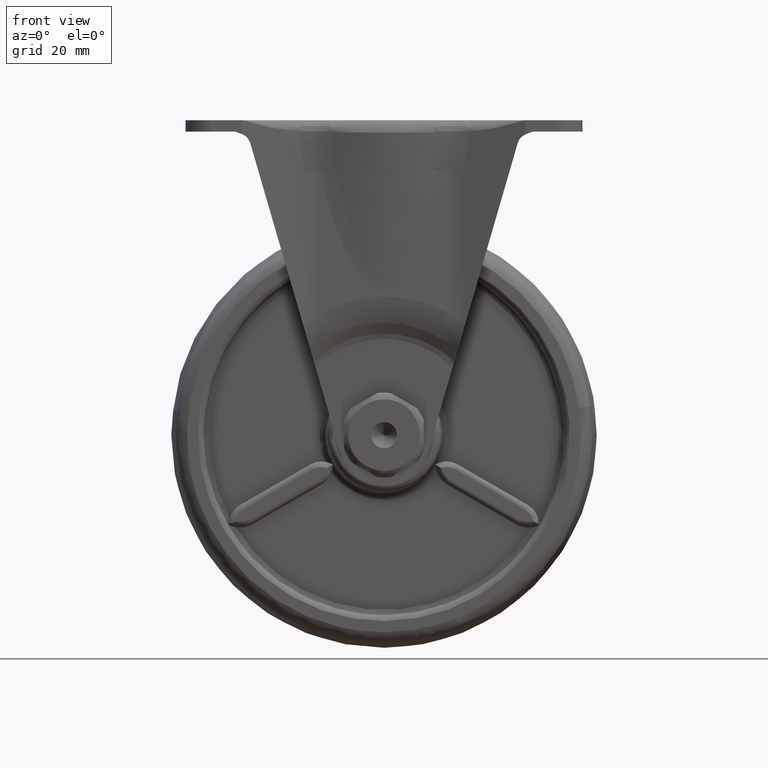
[diagram: clean part render]
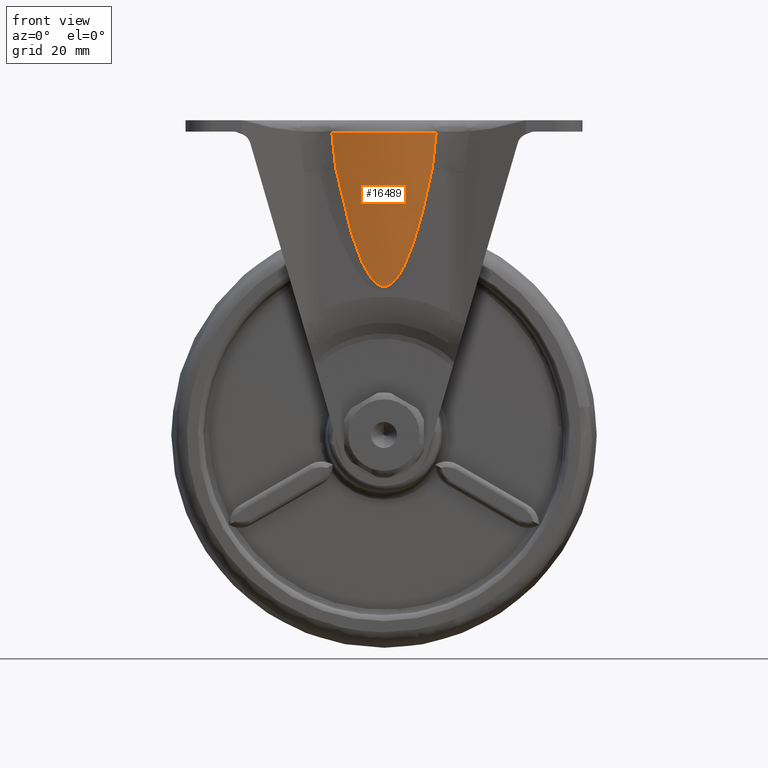
[diagram: same view with one face highlighted and labeled with its STEP entity id]
A machine part, front view. The second image highlights one B-rep face of the part: STEP entity #16489.
In plain terms, the highlighted face is a freeform B-spline surface patch.
Its self-contained STEP definition (entity closure, byte-faithful):
#12428=CARTESIAN_POINT('',(8.530795806443949,-20.856097354703149,-8.355410323775129));
#12429=VERTEX_POINT('',#12428);
#12496=CARTESIAN_POINT('',(9.194323296401290,-21.165415708433649,-2.161020257684145));
#12497=VERTEX_POINT('',#12496);
#12511=CARTESIAN_POINT('',(8.530795806443949,-20.856097354703149,-8.355410323775129));
#12512=CARTESIAN_POINT('',(8.863915262767321,-21.009783463607292,-5.317793989851105));
#12513=CARTESIAN_POINT('',(9.194323296401290,-21.165415708433649,-2.161020257684145));
#12521=(BOUNDED_CURVE()B_SPLINE_CURVE(2,(#12511,#12512,#12513),.UNSPECIFIED.,.F.,.U.)CURVE()GEOMETRIC_REPRESENTATION_ITEM()QUASI_UNIFORM_CURVE()RATIONAL_B_SPLINE_CURVE((1.0,0.999923523458264,1.0))REPRESENTATION_ITEM(''));
#12522=EDGE_CURVE('',#12429,#12497,#12521,.T.);
#12962=CARTESIAN_POINT('',(-8.530786592763409,-20.856096325523851,-8.355456641424510));
#12963=VERTEX_POINT('',#12962);
#13013=CARTESIAN_POINT('',(-9.194319491833340,-21.165417021950049,-2.161020265576605));
#13014=VERTEX_POINT('',#13013);
#13044=CARTESIAN_POINT('',(-9.194319491833388,-21.165417021950049,-2.161020265576630));
#13045=CARTESIAN_POINT('',(-8.863908774537475,-21.009783589364911,-5.317818126593266));
#13046=CARTESIAN_POINT('',(-8.530786592763459,-20.856096325523840,-8.355456641424508));
#13054=(BOUNDED_CURVE()B_SPLINE_CURVE(2,(#13044,#13045,#13046),.UNSPECIFIED.,.F.,.U.)CURVE()GEOMETRIC_REPRESENTATION_ITEM()QUASI_UNIFORM_CURVE()RATIONAL_B_SPLINE_CURVE((1.0,0.999923522220974,1.0))REPRESENTATION_ITEM(''));
#13055=EDGE_CURVE('',#13014,#12963,#13054,.T.);
#13623=CARTESIAN_POINT('',(9.194323296401290,-21.165415708433649,-2.161020257684145));
#13624=CARTESIAN_POINT('',(0.000002127615358,-24.339729936979825,-2.180093600963328));
#13625=CARTESIAN_POINT('',(-9.194319491833312,-21.165417021950059,-2.161020265576602));
#13633=(BOUNDED_CURVE()B_SPLINE_CURVE(2,(#13623,#13624,#13625),.UNSPECIFIED.,.F.,.U.)CURVE()GEOMETRIC_REPRESENTATION_ITEM()QUASI_UNIFORM_CURVE()RATIONAL_B_SPLINE_CURVE((1.0,0.945564422127271,1.0))REPRESENTATION_ITEM(''));
#13634=EDGE_CURVE('',#12497,#13014,#13633,.T.);
#14466=CARTESIAN_POINT('',(-8.530786592763409,-20.856096325523851,-8.355456641424510));
#14467=CARTESIAN_POINT('',(0.000005068997553,-19.903197123475536,-51.240162803397496));
#14468=CARTESIAN_POINT('',(8.530795806443949,-20.856097354703149,-8.355410323775129));
#14476=(BOUNDED_CURVE()B_SPLINE_CURVE(2,(#14466,#14467,#14468),.UNSPECIFIED.,.F.,.U.)CURVE()GEOMETRIC_REPRESENTATION_ITEM()QUASI_UNIFORM_CURVE()RATIONAL_B_SPLINE_CURVE((1.0,0.953324022113413,1.0))REPRESENTATION_ITEM(''));
#14477=EDGE_CURVE('',#12963,#12429,#14476,.T.);
#16469=CARTESIAN_POINT('',(9.427097977647213,-18.719795156338591,-29.825430884701781));
#16470=CARTESIAN_POINT('',(9.427097977647213,-21.154233548533139,-1.337599043431679));
#16471=CARTESIAN_POINT('',(-0.358066664286840,-22.170775811675323,-30.120335735477472));
#16472=CARTESIAN_POINT('',(-0.358066664286841,-24.605214203869878,-1.632503894207360));
#16473=CARTESIAN_POINT('',(-10.058060192799495,-18.488818624228514,-29.805692698215790));
#16474=CARTESIAN_POINT('',(-10.058060192799495,-20.923257016423065,-1.317860856945682));
#16482=(BOUNDED_SURFACE()B_SPLINE_SURFACE(1,2,((#16469,#16471,#16473),(#16470,#16472,#16474)),.UNSPECIFIED.,.F.,.F.,.U.)B_SPLINE_SURFACE_WITH_KNOTS((2,2),(3,3),(0.0,28.591660555166669),(0.0,20.103174031203871),.UNSPECIFIED.)GEOMETRIC_REPRESENTATION_ITEM()RATIONAL_B_SPLINE_SURFACE(((1.0,0.937701407710177,0.997975017277037),(1.0,0.937701407710177,0.997975017277037)))REPRESENTATION_ITEM('')SURFACE());
#16483=ORIENTED_EDGE('',*,*,#13634,.T.);
#16484=ORIENTED_EDGE('',*,*,#13055,.T.);
#16485=ORIENTED_EDGE('',*,*,#14477,.T.);
#16486=ORIENTED_EDGE('',*,*,#12522,.T.);
#16487=EDGE_LOOP('',(#16483,#16484,#16485,#16486));
#16488=FACE_OUTER_BOUND('',#16487,.T.);
#16489=ADVANCED_FACE('',(#16488),#16482,.T.);